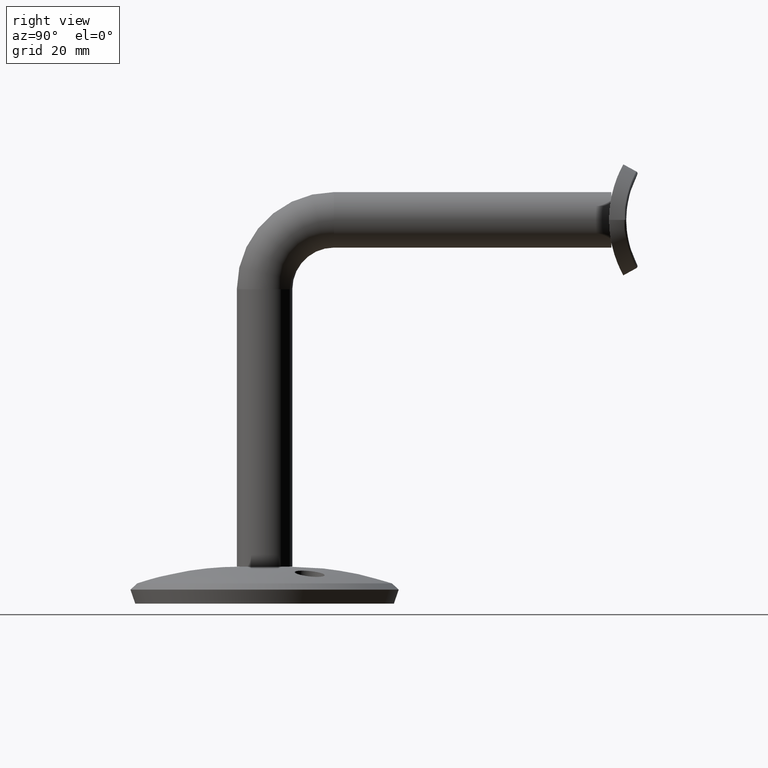
[diagram: clean part render]
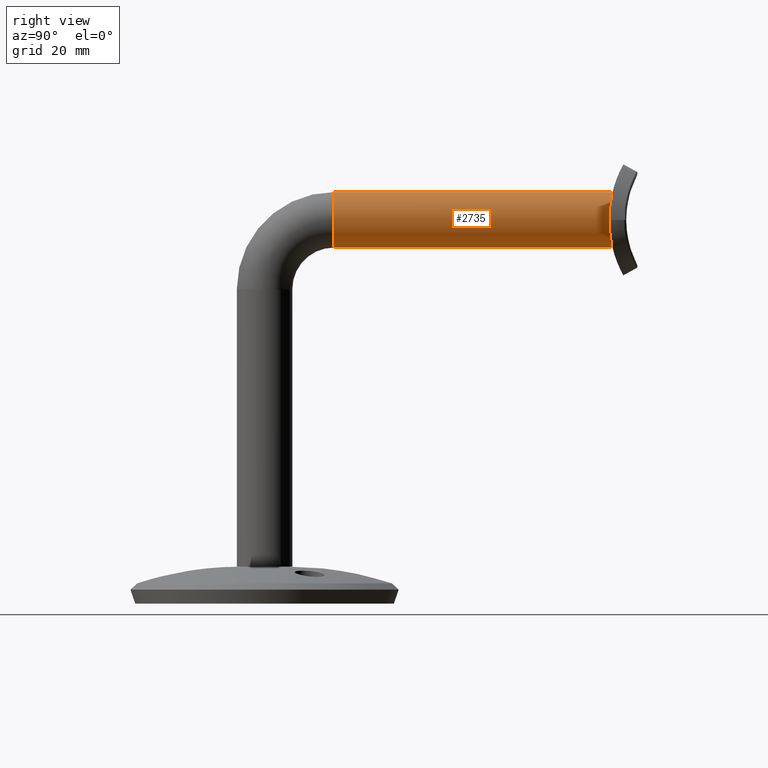
[diagram: same view with one face highlighted and labeled with its STEP entity id]
A machine part, right view. The second image highlights one B-rep face of the part: STEP entity #2735.
In plain terms, the highlighted cylindrical surface (edge-blend (fillet) strip) has radius 6 mm, axis along (0, 1, 0).
Its self-contained STEP definition (entity closure, byte-faithful):
#649 = VECTOR ( 'NONE', #7771, 1000.000000000000000 ) ;
#664 = AXIS2_PLACEMENT_3D ( 'NONE', #16401, #15175, #6657 ) ;
#1313 = CARTESIAN_POINT ( 'NONE',  ( 7.347880794884120722E-16, 14.99999999999999289, 69.00000000000000000 ) ) ;
#1763 = LINE ( 'NONE', #16343, #7614 ) ;
#1997 = AXIS2_PLACEMENT_3D ( 'NONE', #6514, #11642, #14158 ) ;
#2089 = ORIENTED_EDGE ( 'NONE', *, *, #14960, .T. ) ;
#2619 = VERTEX_POINT ( 'NONE', #9712 ) ;
#2678 = CARTESIAN_POINT ( 'NONE',  ( 0.000000000000000000, 14.99999999999999289, 81.00000000000001421 ) ) ;
#2735 = ADVANCED_FACE ( 'NONE', ( #8034 ), #8239, .T. ) ;
#2856 = VERTEX_POINT ( 'NONE', #6716 ) ;
#3972 = ORIENTED_EDGE ( 'NONE', *, *, #14386, .T. ) ;
#4714 = DIRECTION ( 'NONE',  ( 0.000000000000000000, 1.000000000000000000, 0.000000000000000000 ) ) ;
#4982 = CIRCLE ( 'NONE', #7325, 6.000000000000000888 ) ;
#6266 = ORIENTED_EDGE ( 'NONE', *, *, #8539, .F. ) ;
#6514 = CARTESIAN_POINT ( 'NONE',  ( 0.000000000000000000, 14.99999999999999289, 75.00000000000001421 ) ) ;
#6657 = DIRECTION ( 'NONE',  ( 1.000000000000000000, 0.000000000000000000, 0.000000000000000000 ) ) ;
#6716 = CARTESIAN_POINT ( 'NONE',  ( 7.347880794884114806E-16, 14.99999999999999289, 69.00000000000000000 ) ) ;
#7325 = AXIS2_PLACEMENT_3D ( 'NONE', #14666, #10543, #13230 ) ;
#7614 = VECTOR ( 'NONE', #4714, 1000.000000000000000 ) ;
#7685 = CIRCLE ( 'NONE', #664, 6.000000000000000888 ) ;
#7771 = DIRECTION ( 'NONE',  ( 0.000000000000000000, 1.000000000000000000, 0.000000000000000000 ) ) ;
#8034 = FACE_OUTER_BOUND ( 'NONE', #10380, .T. ) ;
#8239 = CYLINDRICAL_SURFACE ( 'NONE', #1997, 6.000000000000005329 ) ;
#8347 = ORIENTED_EDGE ( 'NONE', *, *, #10162, .F. ) ;
#8539 = EDGE_CURVE ( 'NONE', #10601, #14371, #1763, .T. ) ;
#8773 = CARTESIAN_POINT ( 'NONE',  ( 0.000000000000000000, 74.99999999999995737, 81.00000000000001421 ) ) ;
#9712 = CARTESIAN_POINT ( 'NONE',  ( 7.347880794884114806E-16, 74.99999999999995737, 69.00000000000000000 ) ) ;
#10162 = EDGE_CURVE ( 'NONE', #14371, #2619, #4982, .T. ) ;
#10380 = EDGE_LOOP ( 'NONE', ( #2089, #3972, #8347, #6266 ) ) ;
#10543 = DIRECTION ( 'NONE',  ( 0.000000000000000000, 1.000000000000000000, -1.228163569523915759E-16 ) ) ;
#10601 = VERTEX_POINT ( 'NONE', #2678 ) ;
#11642 = DIRECTION ( 'NONE',  ( 0.000000000000000000, 1.000000000000000000, 0.000000000000000000 ) ) ;
#13230 = DIRECTION ( 'NONE',  ( 1.000000000000000000, 0.000000000000000000, 0.000000000000000000 ) ) ;
#14158 = DIRECTION ( 'NONE',  ( 0.000000000000000000, 0.000000000000000000, 1.000000000000000000 ) ) ;
#14371 = VERTEX_POINT ( 'NONE', #8773 ) ;
#14386 = EDGE_CURVE ( 'NONE', #2856, #2619, #16545, .T. ) ;
#14666 = CARTESIAN_POINT ( 'NONE',  ( 0.000000000000000000, 74.99999999999995737, 75.00000000000001421 ) ) ;
#14960 = EDGE_CURVE ( 'NONE', #10601, #2856, #7685, .T. ) ;
#15175 = DIRECTION ( 'NONE',  ( 0.000000000000000000, 1.000000000000000000, -1.228163569523915759E-16 ) ) ;
#16343 = CARTESIAN_POINT ( 'NONE',  ( 0.000000000000000000, 14.99999999999999289, 81.00000000000001421 ) ) ;
#16401 = CARTESIAN_POINT ( 'NONE',  ( 0.000000000000000000, 14.99999999999999289, 75.00000000000001421 ) ) ;
#16545 = LINE ( 'NONE', #1313, #649 ) ;